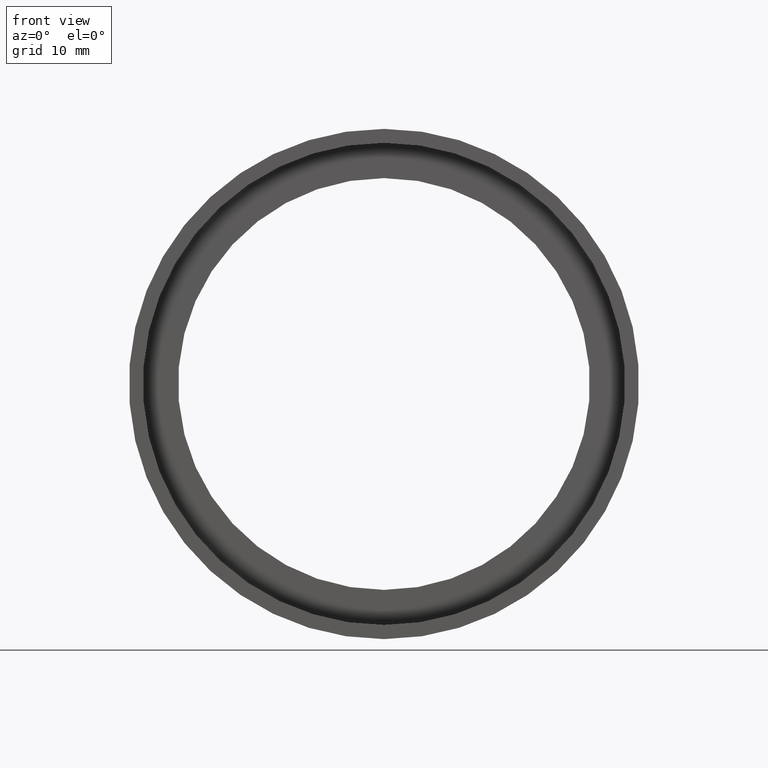
[diagram: clean part render]
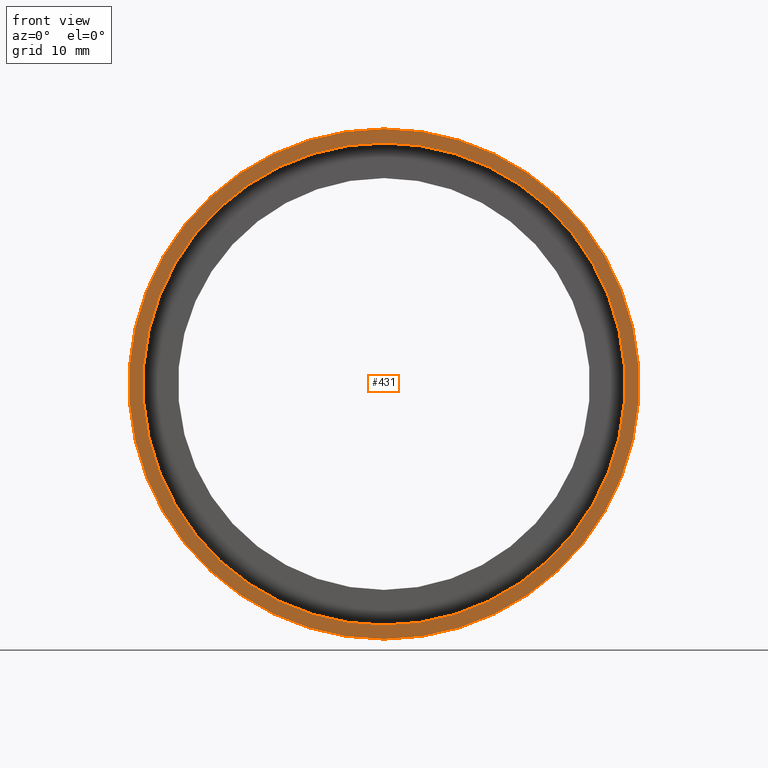
[diagram: same view with one face highlighted and labeled with its STEP entity id]
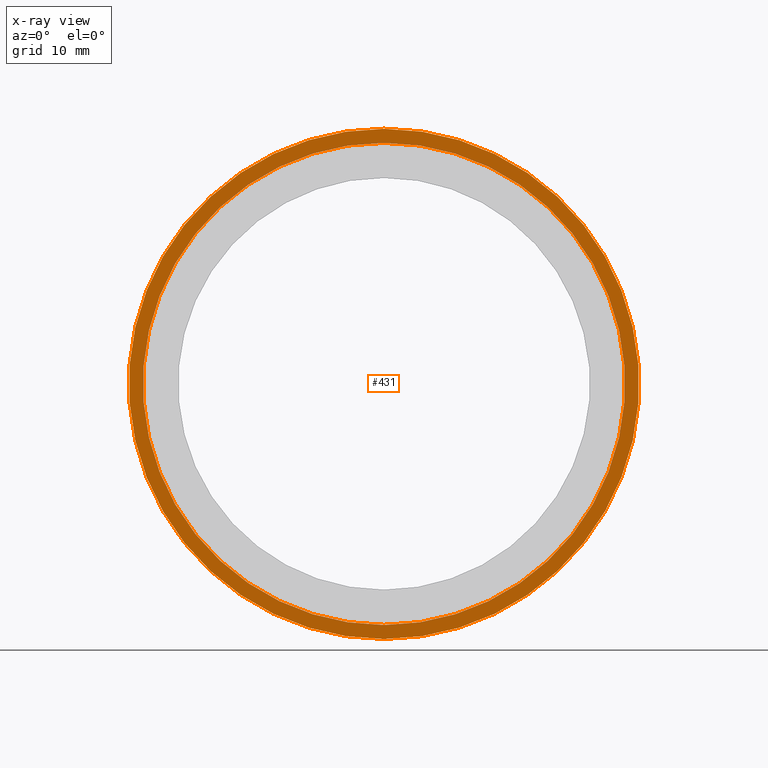
[diagram: x-ray of the same camera — body ghosted, the highlighted face saturated]
A machine part, front view. The second image highlights one B-rep face of the part: STEP entity #431.
The next image is the same camera in x-ray: the body ghosted, the highlighted face saturated — about 0% of this face is hidden behind the body in this view.
In plain terms, the highlighted planar face has unit normal (-0, 1, 0).
Its self-contained STEP definition (entity closure, byte-faithful):
#29 = DIRECTION ( 'NONE',  ( -0.0000000000000000000, 1.000000000000000000, -0.0000000000000000000 ) ) ;
#75 = DIRECTION ( 'NONE',  ( 0.0000000000000000000, 0.0000000000000000000, 1.000000000000000000 ) ) ;
#93 = VERTEX_POINT ( 'NONE', #303 ) ;
#95 = VERTEX_POINT ( 'NONE', #155 ) ;
#101 = AXIS2_PLACEMENT_3D ( 'NONE', #390, #588, #578 ) ;
#113 = FACE_OUTER_BOUND ( 'NONE', #527, .T. ) ;
#149 = DIRECTION ( 'NONE',  ( 0.0000000000000000000, 0.0000000000000000000, 1.000000000000000000 ) ) ;
#155 = CARTESIAN_POINT ( 'NONE',  ( 0.0000000000000000000, -2.775557561562891400E-014, 24.00000000000002100 ) ) ;
#162 = DIRECTION ( 'NONE',  ( 0.0000000000000000000, 0.0000000000000000000, 1.000000000000000000 ) ) ;
#175 = CIRCLE ( 'NONE', #494, 25.40000000000002000 ) ;
#191 = ORIENTED_EDGE ( 'NONE', *, *, #408, .T. ) ;
#211 = CARTESIAN_POINT ( 'NONE',  ( 0.0000000000000000000, -2.775557561562891400E-014, 0.0000000000000000000 ) ) ;
#218 = CARTESIAN_POINT ( 'NONE',  ( 2.939152317953650300E-015, -2.775557561562891400E-014, -24.00000000000002100 ) ) ;
#244 = AXIS2_PLACEMENT_3D ( 'NONE', #453, #29, #314 ) ;
#251 = ORIENTED_EDGE ( 'NONE', *, *, #279, .F. ) ;
#255 = PLANE ( 'NONE',  #534 ) ;
#265 = CIRCLE ( 'NONE', #244, 24.00000000000002100 ) ;
#273 = CIRCLE ( 'NONE', #101, 25.40000000000002000 ) ;
#275 = EDGE_CURVE ( 'NONE', #471, #93, #273, .T. ) ;
#279 = EDGE_CURVE ( 'NONE', #93, #471, #175, .T. ) ;
#292 = FACE_BOUND ( 'NONE', #327, .T. ) ;
#293 = DIRECTION ( 'NONE',  ( -0.0000000000000000000, 1.000000000000000000, -0.0000000000000000000 ) ) ;
#301 = CARTESIAN_POINT ( 'NONE',  ( 0.0000000000000000000, -2.775557561562891400E-014, 0.0000000000000000000 ) ) ;
#303 = CARTESIAN_POINT ( 'NONE',  ( 3.110602869834279600E-015, -2.775557561562891400E-014, -25.40000000000002000 ) ) ;
#314 = DIRECTION ( 'NONE',  ( 0.0000000000000000000, 0.0000000000000000000, 1.000000000000000000 ) ) ;
#315 = CIRCLE ( 'NONE', #615, 24.00000000000002100 ) ;
#320 = DIRECTION ( 'NONE',  ( -0.0000000000000000000, 1.000000000000000000, -0.0000000000000000000 ) ) ;
#327 = EDGE_LOOP ( 'NONE', ( #191, #430 ) ) ;
#365 = CARTESIAN_POINT ( 'NONE',  ( 25.40000000000002000, -1.433284307725800500E-014, 0.0000000000000000000 ) ) ;
#390 = CARTESIAN_POINT ( 'NONE',  ( 0.0000000000000000000, -2.775557561562891400E-014, 0.0000000000000000000 ) ) ;
#397 = ORIENTED_EDGE ( 'NONE', *, *, #275, .F. ) ;
#398 = DIRECTION ( 'NONE',  ( -0.0000000000000000000, 1.000000000000000000, 0.0000000000000000000 ) ) ;
#408 = EDGE_CURVE ( 'NONE', #95, #413, #265, .T. ) ;
#413 = VERTEX_POINT ( 'NONE', #218 ) ;
#430 = ORIENTED_EDGE ( 'NONE', *, *, #445, .T. ) ;
#431 = ADVANCED_FACE ( 'NONE', ( #113, #292 ), #255, .F. ) ;
#445 = EDGE_CURVE ( 'NONE', #413, #95, #315, .T. ) ;
#453 = CARTESIAN_POINT ( 'NONE',  ( 0.0000000000000000000, -2.775557561562891400E-014, 0.0000000000000000000 ) ) ;
#471 = VERTEX_POINT ( 'NONE', #545 ) ;
#494 = AXIS2_PLACEMENT_3D ( 'NONE', #301, #293, #149 ) ;
#527 = EDGE_LOOP ( 'NONE', ( #397, #251 ) ) ;
#534 = AXIS2_PLACEMENT_3D ( 'NONE', #365, #398, #162 ) ;
#545 = CARTESIAN_POINT ( 'NONE',  ( 0.0000000000000000000, -2.775557561562891400E-014, 25.40000000000002000 ) ) ;
#578 = DIRECTION ( 'NONE',  ( 0.0000000000000000000, 0.0000000000000000000, 1.000000000000000000 ) ) ;
#588 = DIRECTION ( 'NONE',  ( -0.0000000000000000000, 1.000000000000000000, -0.0000000000000000000 ) ) ;
#615 = AXIS2_PLACEMENT_3D ( 'NONE', #211, #320, #75 ) ;